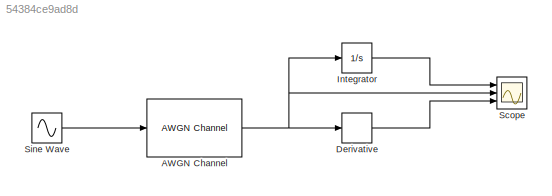
MODEL slx_54384ce9ad8d
KIND model
CONFIG AbsTol = auto
CONFIG EnableMultiTasking = off
CONFIG FixedStep = 0.001
CONFIG MaxStep = auto
CONFIG MinStep = auto
CONFIG RelTol = 1e-3
CONFIG SampleTimeConstraint = Unconstrained
CONFIG SolverName = FixedStepAuto
CONFIG StartTime = 0.0
CONFIG StopTime = 10.0
BLOCK [Reference] AWGN Channel  REF=commchan3/AWGN
Channel
  Ports = [1, 1]
  SourceBlock = commchan3/AWGN\nChannel
  SourceProductBaseCode = CM
  SourceType = AWGN Channel
  UserDataPersistent = on
BLOCK [Derivative] Derivative
BLOCK [Integrator] Integrator
  Ports = [1, 1]
BLOCK [Scope] Scope
  Floating = off
  NumInputPorts = 3
  Ports = [3]
  ScopeSpecificationString = Simulink.scopes.TimeScopeBlockCfg('CurrentConfiguration', extmgr.ConfigurationSet(extmgr.Configuration('Core','General UI',true),extmgr.Configuration('Core','Source UI',true),extmgr.Configuration('Sources','WiredSimulink',true),extmgr.Configuration('Visuals','Time Domain',true,'SerializedDisplays',{struct('MinYLimReal','-17.6696','MaxYLimReal','23.67496','YLabelReal','','MinYLimMag','0.00000','Max...<+2692ch>
BLOCK [Sin] Sine Wave
  Amplitude = 25
  Frequency = 5
  Ports = [0, 1]
  SampleTime = 0
NET AWGN Channel:1 -> Derivative:1, Integrator:1, Scope:2
LINE Derivative:1 -> Scope:3
LINE Integrator:1 -> Scope:1
LINE Sine Wave:1 -> AWGN Channel:1
note: NET lines group one-source signal fan-out (src -> all destinations, sorted); 1:1 wires keep LINE
